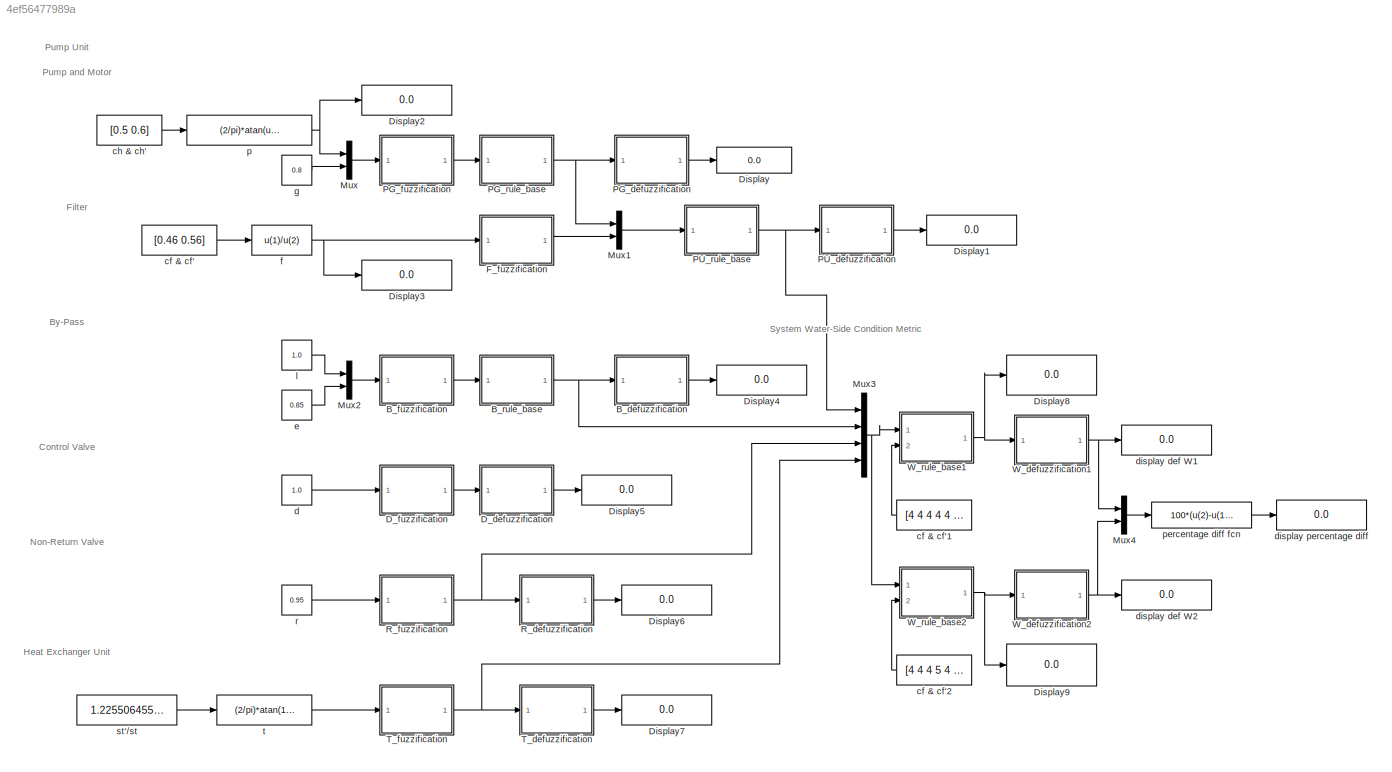
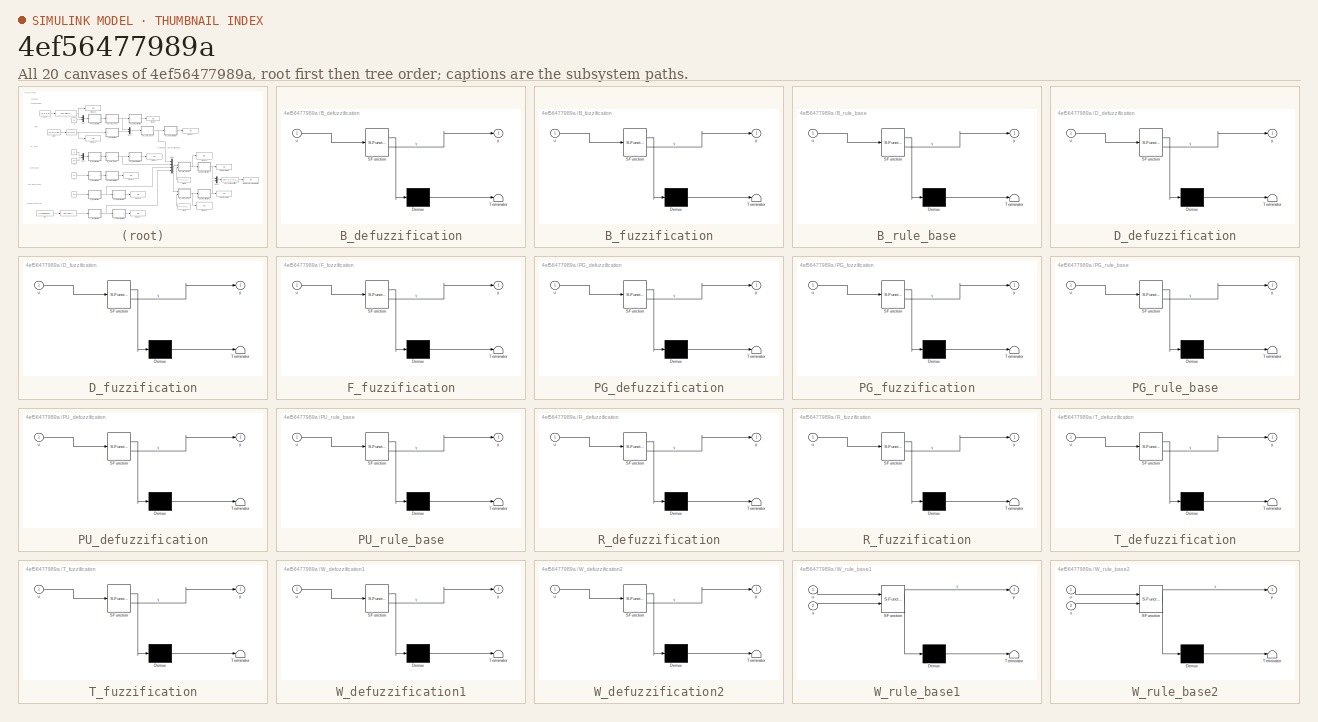
[diagram: thumbnail index - all 20 canvases of the model, root first then tree order]
MODEL slx_4ef56477989a
KIND model
CONFIG AbsTol = auto
CONFIG EnableMultiTasking = off
CONFIG FixedStep = auto
CONFIG MaxStep = auto
CONFIG MinStep = auto
CONFIG RelTol = 1e-3
CONFIG SampleTimeConstraint = Unconstrained
CONFIG Solver = VariableStepAuto
CONFIG SolverName = VariableStepAuto
CONFIG StartTime = 0.0
CONFIG StopTime = 1.0
BLOCK [SubSystem] B_defuzzification
  ErrorFcn = Stateflow.Translate.translate
  PermitHierarchicalResolution = ExplicitOnly
  Ports = [1, 1]
  RequestExecContextInheritance = off
  SFBlockType = MATLAB Function
  TreatAsAtomicUnit = on
BLOCK [Demux] B_defuzzification/ Demux 
  Outputs = 1
  Ports = [1, 1]
BLOCK [S-Function] B_defuzzification/ SFunction 
  EnableBusSupport = on
  FunctionName = sf_sfun
  PortCounts = [1 2]
  Ports = [1, 2]
  SFcnIsStateOwnerBlock = off
  SFunctionDeploymentMode = off
  Tag = Stateflow S-Function 12
BLOCK [Terminator] B_defuzzification/ Terminator 
BLOCK [Inport] B_defuzzification/u
BLOCK [Outport] B_defuzzification/y
BLOCK [SubSystem] B_fuzzification
  ErrorFcn = Stateflow.Translate.translate
  PermitHierarchicalResolution = ExplicitOnly
  Ports = [1, 1]
  RequestExecContextInheritance = off
  SFBlockType = MATLAB Function
  TreatAsAtomicUnit = on
BLOCK [Demux] B_fuzzification/ Demux 
  Outputs = 1
  Ports = [1, 1]
BLOCK [S-Function] B_fuzzification/ SFunction 
  EnableBusSupport = on
  FunctionName = sf_sfun
  PortCounts = [1 2]
  Ports = [1, 2]
  SFcnIsStateOwnerBlock = off
  SFunctionDeploymentMode = off
  Tag = Stateflow S-Function 3
BLOCK [Terminator] B_fuzzification/ Terminator 
BLOCK [Inport] B_fuzzification/u
BLOCK [Outport] B_fuzzification/y
BLOCK [SubSystem] B_rule_base
  ErrorFcn = Stateflow.Translate.translate
  PermitHierarchicalResolution = ExplicitOnly
  Ports = [1, 1]
  RequestExecContextInheritance = off
  SFBlockType = MATLAB Function
  TreatAsAtomicUnit = on
BLOCK [Demux] B_rule_base/ Demux 
  Outputs = 1
  Ports = [1, 1]
BLOCK [S-Function] B_rule_base/ SFunction 
  EnableBusSupport = on
  FunctionName = sf_sfun
  PortCounts = [1 2]
  Ports = [1, 2]
  SFcnIsStateOwnerBlock = off
  SFunctionDeploymentMode = off
  Tag = Stateflow S-Function 11
BLOCK [Terminator] B_rule_base/ Terminator 
BLOCK [Inport] B_rule_base/u
BLOCK [Outport] B_rule_base/y
BLOCK [SubSystem] D_defuzzification
  ErrorFcn = Stateflow.Translate.translate
  PermitHierarchicalResolution = ExplicitOnly
  Ports = [1, 1]
  RequestExecContextInheritance = off
  SFBlockType = MATLAB Function
  TreatAsAtomicUnit = on
BLOCK [Demux] D_defuzzification/ Demux 
  Outputs = 1
  Ports = [1, 1]
BLOCK [S-Function] D_defuzzification/ SFunction 
  EnableBusSupport = on
  FunctionName = sf_sfun
  PortCounts = [1 2]
  Ports = [1, 2]
  SFcnIsStateOwnerBlock = off
  SFunctionDeploymentMode = off
  Tag = Stateflow S-Function 4
BLOCK [Terminator] D_defuzzification/ Terminator 
BLOCK [Inport] D_defuzzification/u
BLOCK [Outport] D_defuzzification/y
BLOCK [SubSystem] D_fuzzification
  ErrorFcn = Stateflow.Translate.translate
  PermitHierarchicalResolution = ExplicitOnly
  Ports = [1, 1]
  RequestExecContextInheritance = off
  SFBlockType = MATLAB Function
  TreatAsAtomicUnit = on
BLOCK [Demux] D_fuzzification/ Demux 
  Outputs = 1
  Ports = [1, 1]
BLOCK [S-Function] D_fuzzification/ SFunction 
  EnableBusSupport = on
  FunctionName = sf_sfun
  PortCounts = [1 2]
  Ports = [1, 2]
  SFcnIsStateOwnerBlock = off
  SFunctionDeploymentMode = off
  Tag = Stateflow S-Function 13
BLOCK [Terminator] D_fuzzification/ Terminator 
BLOCK [Inport] D_fuzzification/u
BLOCK [Outport] D_fuzzification/y
BLOCK [Display] Display
  Decimation = 1
  Ports = [1]
BLOCK [Display] Display1
  Decimation = 1
  Ports = [1]
BLOCK [Display] Display2
  Decimation = 1
  Ports = [1]
BLOCK [Display] Display3
  Decimation = 1
  Ports = [1]
BLOCK [Display] Display4
  Decimation = 1
  Ports = [1]
BLOCK [Display] Display5
  Decimation = 1
  Ports = [1]
BLOCK [Display] Display6
  Decimation = 1
  Ports = [1]
BLOCK [Display] Display7
  Decimation = 1
  Ports = [1]
BLOCK [Display] Display8
  Decimation = 1
  Ports = [1]
BLOCK [Display] Display9
  Decimation = 1
  Ports = [1]
BLOCK [SubSystem] F_fuzzification
  ErrorFcn = Stateflow.Translate.translate
  PermitHierarchicalResolution = ExplicitOnly
  Ports = [1, 1]
  RequestExecContextInheritance = off
  SFBlockType = MATLAB Function
  TreatAsAtomicUnit = on
BLOCK [Demux] F_fuzzification/ Demux 
  Outputs = 1
  Ports = [1, 1]
BLOCK [S-Function] F_fuzzification/ SFunction 
  EnableBusSupport = on
  FunctionName = sf_sfun
  PortCounts = [1 2]
  Ports = [1, 2]
  SFcnIsStateOwnerBlock = off
  SFunctionDeploymentMode = off
  Tag = Stateflow S-Function 10
BLOCK [Terminator] F_fuzzification/ Terminator 
BLOCK [Inport] F_fuzzification/u
BLOCK [Outport] F_fuzzification/y
BLOCK [Mux] Mux
  DisplayOption = bar
  Inputs = 2
  Ports = [2, 1]
BLOCK [Mux] Mux1
  DisplayOption = bar
  Inputs = 2
  Ports = [2, 1]
BLOCK [Mux] Mux2
  DisplayOption = bar
  Inputs = 2
  Ports = [2, 1]
BLOCK [Mux] Mux3
  DisplayOption = bar
  Ports = [4, 1]
BLOCK [Mux] Mux4
  DisplayOption = bar
  Inputs = 2
  Ports = [2, 1]
BLOCK [SubSystem] PG_defuzzification
  ErrorFcn = Stateflow.Translate.translate
  PermitHierarchicalResolution = ExplicitOnly
  Ports = [1, 1]
  RequestExecContextInheritance = off
  SFBlockType = MATLAB Function
  TreatAsAtomicUnit = on
BLOCK [Demux] PG_defuzzification/ Demux 
  Outputs = 1
  Ports = [1, 1]
BLOCK [S-Function] PG_defuzzification/ SFunction 
  EnableBusSupport = on
  FunctionName = sf_sfun
  PortCounts = [1 2]
  Ports = [1, 2]
  SFcnIsStateOwnerBlock = off
  SFunctionDeploymentMode = off
  Tag = Stateflow S-Function 8
BLOCK [Terminator] PG_defuzzification/ Terminator 
BLOCK [Inport] PG_defuzzification/u
BLOCK [Outport] PG_defuzzification/y
BLOCK [SubSystem] PG_fuzzification
  ErrorFcn = Stateflow.Translate.translate
  PermitHierarchicalResolution = ExplicitOnly
  Ports = [1, 1]
  RequestExecContextInheritance = off
  SFBlockType = MATLAB Function
  TreatAsAtomicUnit = on
BLOCK [Demux] PG_fuzzification/ Demux 
  Outputs = 1
  Ports = [1, 1]
BLOCK [S-Function] PG_fuzzification/ SFunction 
  EnableBusSupport = on
  FunctionName = sf_sfun
  PortCounts = [1 2]
  Ports = [1, 2]
  SFcnIsStateOwnerBlock = off
  SFunctionDeploymentMode = off
  Tag = Stateflow S-Function 2
BLOCK [Terminator] PG_fuzzification/ Terminator 
BLOCK [Inport] PG_fuzzification/u
BLOCK [Outport] PG_fuzzification/y
BLOCK [SubSystem] PG_rule_base
  ErrorFcn = Stateflow.Translate.translate
  PermitHierarchicalResolution = ExplicitOnly
  Ports = [1, 1]
  RequestExecContextInheritance = off
  SFBlockType = MATLAB Function
  TreatAsAtomicUnit = on
BLOCK [Demux] PG_rule_base/ Demux 
  Outputs = 1
  Ports = [1, 1]
BLOCK [S-Function] PG_rule_base/ SFunction 
  EnableBusSupport = on
  FunctionName = sf_sfun
  PortCounts = [1 2]
  Ports = [1, 2]
  SFcnIsStateOwnerBlock = off
  SFunctionDeploymentMode = off
  Tag = Stateflow S-Function 7
BLOCK [Terminator] PG_rule_base/ Terminator 
BLOCK [Inport] PG_rule_base/u
BLOCK [Outport] PG_rule_base/y
BLOCK [SubSystem] PU_defuzzification
  ErrorFcn = Stateflow.Translate.translate
  PermitHierarchicalResolution = ExplicitOnly
  Ports = [1, 1]
  RequestExecContextInheritance = off
  SFBlockType = MATLAB Function
  TreatAsAtomicUnit = on
BLOCK [Demux] PU_defuzzification/ Demux 
  Outputs = 1
  Ports = [1, 1]
BLOCK [S-Function] PU_defuzzification/ SFunction 
  EnableBusSupport = on
  FunctionName = sf_sfun
  PortCounts = [1 2]
  Ports = [1, 2]
  SFcnIsStateOwnerBlock = off
  SFunctionDeploymentMode = off
  Tag = Stateflow S-Function 1
BLOCK [Terminator] PU_defuzzification/ Terminator 
BLOCK [Inport] PU_defuzzification/u
BLOCK [Outport] PU_defuzzification/y
BLOCK [SubSystem] PU_rule_base
  ErrorFcn = Stateflow.Translate.translate
  PermitHierarchicalResolution = ExplicitOnly
  Ports = [1, 1]
  RequestExecContextInheritance = off
  SFBlockType = MATLAB Function
  TreatAsAtomicUnit = on
BLOCK [Demux] PU_rule_base/ Demux 
  Outputs = 1
  Ports = [1, 1]
BLOCK [S-Function] PU_rule_base/ SFunction 
  EnableBusSupport = on
  FunctionName = sf_sfun
  PortCounts = [1 2]
  Ports = [1, 2]
  SFcnIsStateOwnerBlock = off
  SFunctionDeploymentMode = off
  Tag = Stateflow S-Function 9
BLOCK [Terminator] PU_rule_base/ Terminator 
BLOCK [Inport] PU_rule_base/u
BLOCK [Outport] PU_rule_base/y
BLOCK [SubSystem] R_defuzzification
  ErrorFcn = Stateflow.Translate.translate
  PermitHierarchicalResolution = ExplicitOnly
  Ports = [1, 1]
  RequestExecContextInheritance = off
  SFBlockType = MATLAB Function
  TreatAsAtomicUnit = on
BLOCK [Demux] R_defuzzification/ Demux 
  Outputs = 1
  Ports = [1, 1]
BLOCK [S-Function] R_defuzzification/ SFunction 
  EnableBusSupport = on
  FunctionName = sf_sfun
  PortCounts = [1 2]
  Ports = [1, 2]
  SFcnIsStateOwnerBlock = off
  SFunctionDeploymentMode = off
  Tag = Stateflow S-Function 5
BLOCK [Terminator] R_defuzzification/ Terminator 
BLOCK [Inport] R_defuzzification/u
BLOCK [Outport] R_defuzzification/y
BLOCK [SubSystem] R_fuzzification
  ErrorFcn = Stateflow.Translate.translate
  PermitHierarchicalResolution = ExplicitOnly
  Ports = [1, 1]
  RequestExecContextInheritance = off
  SFBlockType = MATLAB Function
  TreatAsAtomicUnit = on
BLOCK [Demux] R_fuzzification/ Demux 
  Outputs = 1
  Ports = [1, 1]
BLOCK [S-Function] R_fuzzification/ SFunction 
  EnableBusSupport = on
  FunctionName = sf_sfun
  PortCounts = [1 2]
  Ports = [1, 2]
  SFcnIsStateOwnerBlock = off
  SFunctionDeploymentMode = off
  Tag = Stateflow S-Function 14
BLOCK [Terminator] R_fuzzification/ Terminator 
BLOCK [Inport] R_fuzzification/u
BLOCK [Outport] R_fuzzification/y
BLOCK [SubSystem] T_defuzzification
  ErrorFcn = Stateflow.Translate.translate
  PermitHierarchicalResolution = ExplicitOnly
  Ports = [1, 1]
  RequestExecContextInheritance = off
  SFBlockType = MATLAB Function
  TreatAsAtomicUnit = on
BLOCK [Demux] T_defuzzification/ Demux 
  Outputs = 1
  Ports = [1, 1]
BLOCK [S-Function] T_defuzzification/ SFunction 
  EnableBusSupport = on
  FunctionName = sf_sfun
  PortCounts = [1 2]
  Ports = [1, 2]
  SFcnIsStateOwnerBlock = off
  SFunctionDeploymentMode = off
  Tag = Stateflow S-Function 6
BLOCK [Terminator] T_defuzzification/ Terminator 
BLOCK [Inport] T_defuzzification/u
BLOCK [Outport] T_defuzzification/y
BLOCK [SubSystem] T_fuzzification
  ErrorFcn = Stateflow.Translate.translate
  PermitHierarchicalResolution = ExplicitOnly
  Ports = [1, 1]
  RequestExecContextInheritance = off
  SFBlockType = MATLAB Function
  TreatAsAtomicUnit = on
BLOCK [Demux] T_fuzzification/ Demux 
  Outputs = 1
  Ports = [1, 1]
BLOCK [S-Function] T_fuzzification/ SFunction 
  EnableBusSupport = on
  FunctionName = sf_sfun
  PortCounts = [1 2]
  Ports = [1, 2]
  SFcnIsStateOwnerBlock = off
  SFunctionDeploymentMode = off
  Tag = Stateflow S-Function 15
BLOCK [Terminator] T_fuzzification/ Terminator 
BLOCK [Inport] T_fuzzification/u
BLOCK [Outport] T_fuzzification/y
BLOCK [SubSystem] W_defuzzification1
  ErrorFcn = Stateflow.Translate.translate
  PermitHierarchicalResolution = ExplicitOnly
  Ports = [1, 1]
  RequestExecContextInheritance = off
  SFBlockType = MATLAB Function
  TreatAsAtomicUnit = on
BLOCK [Demux] W_defuzzification1/ Demux 
  Outputs = 1
  Ports = [1, 1]
BLOCK [S-Function] W_defuzzification1/ SFunction 
  EnableBusSupport = on
  FunctionName = sf_sfun
  PortCounts = [1 2]
  Ports = [1, 2]
  SFcnIsStateOwnerBlock = off
  SFunctionDeploymentMode = off
  Tag = Stateflow S-Function 18
BLOCK [Terminator] W_defuzzification1/ Terminator 
BLOCK [Inport] W_defuzzification1/u
BLOCK [Outport] W_defuzzification1/y
BLOCK [SubSystem] W_defuzzification2
  ErrorFcn = Stateflow.Translate.translate
  PermitHierarchicalResolution = ExplicitOnly
  Ports = [1, 1]
  RequestExecContextInheritance = off
  SFBlockType = MATLAB Function
  TreatAsAtomicUnit = on
BLOCK [Demux] W_defuzzification2/ Demux 
  Outputs = 1
  Ports = [1, 1]
BLOCK [S-Function] W_defuzzification2/ SFunction 
  EnableBusSupport = on
  FunctionName = sf_sfun
  PortCounts = [1 2]
  Ports = [1, 2]
  SFcnIsStateOwnerBlock = off
  SFunctionDeploymentMode = off
  Tag = Stateflow S-Function 19
BLOCK [Terminator] W_defuzzification2/ Terminator 
BLOCK [Inport] W_defuzzification2/u
BLOCK [Outport] W_defuzzification2/y
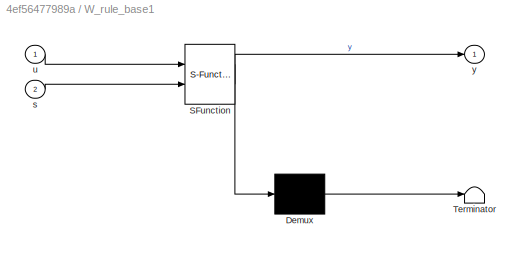
BLOCK [SubSystem] W_rule_base1
  ErrorFcn = Stateflow.Translate.translate
  PermitHierarchicalResolution = ExplicitOnly
  Ports = [2, 1]
  RequestExecContextInheritance = off
  SFBlockType = MATLAB Function
  TreatAsAtomicUnit = on
BLOCK [Demux] W_rule_base1/ Demux 
  Outputs = 1
  Ports = [1, 1]
BLOCK [S-Function] W_rule_base1/ SFunction 
  EnableBusSupport = on
  FunctionName = sf_sfun
  PortCounts = [2 2]
  Ports = [2, 2]
  SFcnIsStateOwnerBlock = off
  SFunctionDeploymentMode = off
  Tag = Stateflow S-Function 16
BLOCK [Terminator] W_rule_base1/ Terminator 
BLOCK [Inport] W_rule_base1/s
  Port = 2
BLOCK [Inport] W_rule_base1/u
BLOCK [Outport] W_rule_base1/y
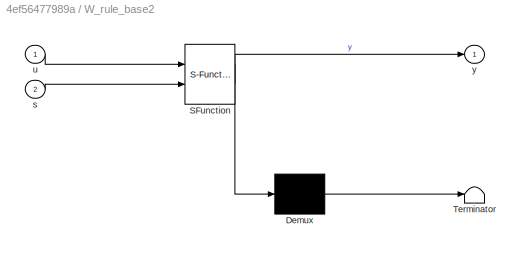
BLOCK [SubSystem] W_rule_base2
  ErrorFcn = Stateflow.Translate.translate
  PermitHierarchicalResolution = ExplicitOnly
  Ports = [2, 1]
  RequestExecContextInheritance = off
  SFBlockType = MATLAB Function
  TreatAsAtomicUnit = on
BLOCK [Demux] W_rule_base2/ Demux 
  Outputs = 1
  Ports = [1, 1]
BLOCK [S-Function] W_rule_base2/ SFunction 
  EnableBusSupport = on
  FunctionName = sf_sfun
  PortCounts = [2 2]
  Ports = [2, 2]
  SFcnIsStateOwnerBlock = off
  SFunctionDeploymentMode = off
  Tag = Stateflow S-Function 17
BLOCK [Terminator] W_rule_base2/ Terminator 
BLOCK [Inport] W_rule_base2/s
  Port = 2
BLOCK [Inport] W_rule_base2/u
BLOCK [Outport] W_rule_base2/y
BLOCK [Constant] cf & cf'
  Value = [0.46 0.56]
BLOCK [Constant] cf & cf'1
  Value = [4 4 4 4 4 4 4 5]
BLOCK [Constant] cf & cf'2
  Value = [4 4 4 5 4 4 4 5]
BLOCK [Constant] ch & ch'
  Value = [0.5 0.6]
BLOCK [Constant] d
  Value = 1.0
BLOCK [Display] display def W1
  Decimation = 1
  Ports = [1]
BLOCK [Display] display def W2
  Decimation = 1
  Ports = [1]
BLOCK [Display] display percentage diff
  Decimation = 1
  Ports = [1]
BLOCK [Constant] e
  Value = 0.85
BLOCK [Fcn] f
  Expr = u(1)/u(2)
BLOCK [Constant] g
  Value = 0.8
BLOCK [Constant] l
  Value = 1.0
BLOCK [Fcn] p
  Expr = (2/pi)*atan(u(1)/(u(2)-u(1)))
BLOCK [Fcn] percentage diff fcn
  Expr = 100*(u(2)-u(1))/u(1)
BLOCK [Constant] r
  Value = 0.95
BLOCK [Constant] st'//st
  Value = 1.225506455158971
BLOCK [Fcn] t
  Expr = (2/pi)*atan(1/(u-1))
ANNOTATION (root): By-Pass
ANNOTATION (root): Control Valve
ANNOTATION (root): Filter
ANNOTATION (root): Heat Exchanger Unit
ANNOTATION (root): Non-Return Valve
ANNOTATION (root): Pump Unit
ANNOTATION (root): Pump and Motor
ANNOTATION (root): System Water-Side Condition Metric
LINE B_defuzzification:1 -> Display4:1
LINE B_fuzzification:1 -> B_rule_base:1
NET B_rule_base:1 -> B_defuzzification:1, Mux3:2
LINE D_defuzzification:1 -> Display5:1
LINE D_fuzzification:1 -> D_defuzzification:1
LINE F_fuzzification:1 -> Mux1:2
LINE Mux1:1 -> PU_rule_base:1
LINE Mux2:1 -> B_fuzzification:1
NET Mux3:1 -> W_rule_base1:1, W_rule_base2:1
LINE Mux4:1 -> percentage diff fcn:1
LINE Mux:1 -> PG_fuzzification:1
LINE PG_defuzzification:1 -> Display:1
LINE PG_fuzzification:1 -> PG_rule_base:1
NET PG_rule_base:1 -> Mux1:1, PG_defuzzification:1
LINE PU_defuzzification:1 -> Display1:1
NET PU_rule_base:1 -> Mux3:1, PU_defuzzification:1
LINE R_defuzzification:1 -> Display6:1
NET R_fuzzification:1 -> Mux3:3, R_defuzzification:1
LINE T_defuzzification:1 -> Display7:1
NET T_fuzzification:1 -> Mux3:4, T_defuzzification:1
NET W_defuzzification1:1 -> Mux4:1, display def W1:1
NET W_defuzzification2:1 -> Mux4:2, display def W2:1
NET W_rule_base1:1 -> Display8:1, W_defuzzification1:1
NET W_rule_base2:1 -> Display9:1, W_defuzzification2:1
LINE cf & cf'1:1 -> W_rule_base1:2
LINE cf & cf'2:1 -> W_rule_base2:2
LINE cf & cf':1 -> f:1
LINE ch & ch':1 -> p:1
LINE d:1 -> D_fuzzification:1
LINE e:1 -> Mux2:2
NET f:1 -> Display3:1, F_fuzzification:1
LINE g:1 -> Mux:2
LINE l:1 -> Mux2:1
NET p:1 -> Display2:1, Mux:1
LINE percentage diff fcn:1 -> display percentage diff:1
LINE r:1 -> R_fuzzification:1
LINE st'//st:1 -> t:1
LINE t:1 -> T_fuzzification:1
note: NET lines group one-source signal fan-out (src -> all destinations, sorted); 1:1 wires keep LINE
CHART T_fuzzification states=1 transitions=1
  STATE_LABEL 'eML_blk_kernel()'
  STATE_LABEL 'SCRIPT:\nfunction y = fcn(u)\n\n% Heat Exchanger Unit\nt = u; % pump condition\n\nT = epud(t);\n\ny = T;\n\nfunction mu = epud(x)\n    mu = zeros(1,5);\n    if x < 0\n        mu(1) = 1+4*x;\n    elseif x < 0.25\n        mu(1) = 1-4*x;\n        mu(2) = 4*x;\n    elseif x < 0.5\n        mu(2) = 2*(1-2*x);\n        mu(3) = 4*x-1;\n    elseif x < 0.75\n        mu(3) = 3-4*x;\n        mu(4) = 2*(2*x-1);\n    elseif x < 1\n   ...<+93ch>'
CHART W_rule_base1 states=1 transitions=1
  STATE_LABEL 'eML_blk_kernel()'
  STATE_LABEL 'SCRIPT:\nfunction y = fcn(u,s)\n\n% System Water-Side Condition Metric\n\n% Pump Unit\nPU = u(1,1:5);\n\n% By-Pass\nB = u(1,6:10);\n\n% Control Valve\n% D: reduced without loss\n\n% Non-Return Valve\nR = u(1,11:15);\n\n% Heat Exchanger Unit\nT = u(1,16:20);\n\nfiringPU = find(PU > 0);\nfiringB = find(B > 0);\nfiringR = find(R > 0);\nfiringT = find(T > 0);\n\noutPU = zeros(1,2);\noutPU(1) = PU(firingPU(1));\noutPU(2) = PU(fi...<+1801ch>'
CHART W_rule_base2 states=1 transitions=1
  STATE_LABEL 'eML_blk_kernel()'
  STATE_LABEL 'SCRIPT:\nfunction y = fcn(u,s)\n\n% System Water-Side Condition Metric\n\n% Pump Unit\nPU = u(1,1:5);\n\n% By-Pass\nB = u(1,6:10);\n\n% Control Valve\n% D: reduced without loss\n\n% Non-Return Valve\nR = u(1,11:15);\n\n% Heat Exchanger Unit\nT = u(1,16:20);\n\nfiringPU = find(PU > 0);\nfiringB = find(B > 0);\nfiringR = find(R > 0);\nfiringT = find(T > 0);\n\noutPU = zeros(1,2);\noutPU(1) = PU(firingPU(1));\noutPU(2) = PU(fi...<+1801ch>'
CHART W_defuzzification1 states=1 transitions=1
  STATE_LABEL 'eML_blk_kernel()'
  STATE_LABEL 'SCRIPT:\nfunction y = fcn(u)\n\nW = zeros(1,5);\nW(4) = u(1);\nW(5) = u(2);\n\ndefW = defuzzify(W);\n\ny = defW;\n\nfunction out = defuzzify(R)\n\n    out = (R(1)*0 + R(2)*0.25 + R(3)*0.5 + R(4)*0.75 + R(5)*1)/(sum(R));\n\nend\n\nend'
CHART W_defuzzification2 states=1 transitions=1
  STATE_LABEL 'eML_blk_kernel()'
  STATE_LABEL 'SCRIPT:\nfunction y = fcn(u)\n\nW = zeros(1,5);\nW(4) = u(1);\nW(5) = u(2);\n\ndefW = defuzzify(W);\n\ny = defW;\n\nfunction out = defuzzify(R)\n\n    out = (R(1)*0 + R(2)*0.25 + R(3)*0.5 + R(4)*0.75 + R(5)*1)/(sum(R));\n\nend\n\nend'
CHART PG_fuzzification states=1 transitions=1
  STATE_LABEL 'eML_blk_kernel()'
  STATE_LABEL 'SCRIPT:\nfunction y = fcn(u)\n\n% Pump and Motor\np = u(1); % pump condition\ng = u(2); % assumed pump-gland condition\n\n% Pump and Filter Condition\nP = epud(p); % filter condition\nG = epud(g); % gland condition\n\ny = [P;G];\n\nfunction mu = epud(x)\n    mu = zeros(1,5);\n    if x < 0\n        mu(1) = 1+4*x;\n    elseif x < 0.25\n        mu(1) = 1-4*x;\n        mu(2) = 4*x;\n    elseif x < 0.5\n        mu(2) = 2*(...<+214ch>'
CHART B_fuzzification states=1 transitions=1
  STATE_LABEL 'eML_blk_kernel()'
  STATE_LABEL 'SCRIPT:\nfunction y = fcn(u)\n\n% By-Pass\nl = u(1); % observed valve gland seal condition\n\nL = epud(l);\n\ne = u(2); % operational ease condition\n\nE = epud_inv(e);\n\ny = [L,E];\n\nfunction mu = epud(x)\n    mu = zeros(1,5);\n    if x < 0\n        mu(1) = 1+4*x;\n    elseif x < 0.25\n        mu(1) = 1-4*x;\n        mu(2) = 4*x;\n    elseif x < 0.5\n        mu(2) = 2*(1-2*x);\n        mu(3) = 4*x-1;\n    elseif x < 0...<+563ch>'
CHART D_defuzzification states=1 transitions=1
  STATE_LABEL 'eML_blk_kernel()'
  STATE_LABEL 'SCRIPT:\nfunction y = fcn(u)\n\nD = u;\n\ndefD = defuzzify(D);\n\ny = defD;\n\nfunction out = defuzzify(R)\n\n    out = (R(1)*0 + R(2)*0.25 + R(3)*0.5 + R(4)*0.75 + R(5)*1)/(sum(R));\n\nend\n\nend'
CHART R_defuzzification states=1 transitions=1
  STATE_LABEL 'eML_blk_kernel()'
  STATE_LABEL 'SCRIPT:\nfunction y = fcn(u)\n\nR = u;\n\ndefR = defuzzify(R);\n\ny = defR;\n\nfunction out = defuzzify(R)\n\n    out = (R(1)*0 + R(2)*0.25 + R(3)*0.5 + R(4)*0.75 + R(5)*1)/(sum(R));\n\nend\n\nend'
CHART T_defuzzification states=1 transitions=1
  STATE_LABEL 'eML_blk_kernel()'
  STATE_LABEL 'SCRIPT:\nfunction y = fcn(u)\n\nT = u;\n\ndefT = defuzzify(T);\n\ny = defT;\n\nfunction out = defuzzify(R)\n\n    out = (R(1)*0 + R(2)*0.25 + R(3)*0.5 + R(4)*0.75 + R(5)*1)/(sum(R));\n\nend\n\nend'
CHART PG_rule_base states=1 transitions=1
  STATE_LABEL 'eML_blk_kernel()'
  STATE_LABEL 'SCRIPT:\nfunction y = fcn(u)\n\n% Pump and Filter Condition\nP = u(1,:); % filter condition\nG = u(2,:); % gland condition\n\nPG = rulePG(P,G);\n\ny = PG;\n\nfunction PG = rulePG(P,G)\n    R11 = min(P(1),G(1));\n    R21 = min(P(1),G(2));\n    R12 = min(P(2),G(1));\n    R22 = min(P(2),G(2));\n    R32 = min(P(2),G(3));\n    R23 = min(P(3),G(2));\n    R33 = min(P(3),G(3));\n    R43 = min(P(3),G(4));\n    R34 = min(P(4),...<+220ch>'
CHART PG_defuzzification states=1 transitions=1
  STATE_LABEL 'eML_blk_kernel()'
  STATE_LABEL 'SCRIPT:\nfunction y = fcn(u)\n\nPG = u;\n\ndefPG = defuzzify(PG);\n\ny = defPG;\n\nfunction out = defuzzify(R)\n\n    out = (R(1)*0 + R(2)*0.25 + R(3)*0.5 + R(4)*0.75 + R(5)*1)/(sum(R));\n\nend\n\nend'
CHART PU_rule_base states=1 transitions=1
  STATE_LABEL 'eML_blk_kernel()'
  STATE_LABEL 'SCRIPT:\nfunction y = fcn(u)\n\n% Pump Unit Condition\nPG = u(1:5);\n\n% Filter Condition\nF = u(6:10);\n\nPU = rulePU(PG,F);\n\ny = PU;\n\nfunction PU = rulePU(P,U)\n    R11 = min(P(1),U(1));\n    R21 = min(P(1),U(2));\n    R12 = min(P(2),U(1));\n    R22 = min(P(2),U(2));\n    R32 = min(P(2),U(3));\n    R23 = min(P(3),U(2));\n    R33 = min(P(3),U(3));\n    R43 = min(P(3),U(4));\n    R34 = min(P(4),U(3));\n    R44 = min...<+200ch>'
CHART F_fuzzification states=1 transitions=1
  STATE_LABEL 'eML_blk_kernel()'
  STATE_LABEL 'SCRIPT:\nfunction y = fcn(u)\n\n% Filter Condition\nf = u;\nF = epud(f); % pump condition\n\ny = F;\n\nfunction mu = epud(x)\n    mu = zeros(1,5);\n    if x < 0\n        mu(1) = 1+4*x;\n    elseif x < 0.25\n        mu(1) = 1-4*x;\n        mu(2) = 4*x;\n    elseif x < 0.5\n        mu(2) = 2*(1-2*x);\n        mu(3) = 4*x-1;\n    elseif x < 0.75\n        mu(3) = 3-4*x;\n        mu(4) = 2*(2*x-1);\n    elseif x < 1\n       ...<+89ch>'
CHART B_rule_base states=1 transitions=1
  STATE_LABEL 'eML_blk_kernel()'
  STATE_LABEL 'SCRIPT:\nfunction y = fcn(u)\n\nL = u(1:5);\n\nE = u(6:10);\n\nB = ruleB(E,L);\n\ny = B;\n\nfunction B = ruleB(E,L)\n    R11 = min(E(5),L(1));\n    R21 = min(E(5),L(2));\n    R31 = min(E(5),L(3));\n    R41 = min(E(5),L(4));\n    R51 = min(E(5),L(5));\n    R12 = min(E(4),L(1));\n    R22 = min(E(4),L(2));\n    R32 = min(E(4),L(3));\n    R42 = min(E(4),L(4));\n    R52 = min(E(4),L(5));\n    R13 = min(E(3),L(1));\n    R23 =...<+511ch>'
CHART PU_defuzzification states=1 transitions=1
  STATE_LABEL 'eML_blk_kernel()'
  STATE_LABEL 'SCRIPT:\nfunction y = fcn(u)\n\nPU = u;\n\ndefPU = defuzzify(PU);\n\ny = defPU;\n\nfunction out = defuzzify(R)\n\n    out = (R(1)*0 + R(2)*0.25 + R(3)*0.5 + R(4)*0.75 + R(5)*1)/(sum(R));\n\nend\n\nend'
CHART B_defuzzification states=1 transitions=1
  STATE_LABEL 'eML_blk_kernel()'
  STATE_LABEL 'SCRIPT:\nfunction y = fcn(u)\n\nB = u;\n\ndefB = defuzzify(B);\n\ny = defB;\n\nfunction out = defuzzify(R)\n\n    out = (R(1)*0 + R(2)*0.25 + R(3)*0.5 + R(4)*0.75 + R(5)*1)/(sum(R));\n\nend\n\nend'
CHART D_fuzzification states=1 transitions=1
  STATE_LABEL 'eML_blk_kernel()'
  STATE_LABEL 'SCRIPT:\nfunction y = fcn(u)\n\n% Control Valve\nd = u; % the unit condition observation\n\nD = epud(d);\n\ny = D;\n\nfunction mu = epud(x)\n    mu = zeros(1,5);\n    if x < 0\n        mu(1) = 1+4*x;\n    elseif x < 0.25\n        mu(1) = 1-4*x;\n        mu(2) = 4*x;\n    elseif x < 0.5\n        mu(2) = 2*(1-2*x);\n        mu(3) = 4*x-1;\n    elseif x < 0.75\n        mu(3) = 3-4*x;\n        mu(4) = 2*(2*x-1);\n    elseif...<+103ch>'
CHART R_fuzzification states=1 transitions=1
  STATE_LABEL 'eML_blk_kernel()'
  STATE_LABEL 'SCRIPT:\nfunction y = fcn(u)\n\n% Non-Return Valve\nr = u; % the observed condition\n\nR = epud(r);\n\ny = R;\n\nfunction mu = epud(x)\n    mu = zeros(1,5);\n    if x < 0\n        mu(1) = 1+4*x;\n    elseif x < 0.25\n        mu(1) = 1-4*x;\n        mu(2) = 4*x;\n    elseif x < 0.5\n        mu(2) = 2*(1-2*x);\n        mu(3) = 4*x-1;\n    elseif x < 0.75\n        mu(3) = 3-4*x;\n        mu(4) = 2*(2*x-1);\n    elseif x < ...<+98ch>'
CHART  states=0 transitions=0
CHART  states=0 transitions=0
CHART  states=0 transitions=0
CHART  states=0 transitions=0
CHART  states=0 transitions=0
CHART  states=0 transitions=0
CHART  states=0 transitions=0
CHART  states=0 transitions=0
CHART  states=0 transitions=0
CHART  states=0 transitions=0
CHART  states=0 transitions=0
CHART  states=0 transitions=0
CHART  states=0 transitions=0
CHART  states=0 transitions=0
CHART  states=0 transitions=0
CHART  states=0 transitions=0
CHART  states=0 transitions=0
CHART  states=0 transitions=0
CHART  states=0 transitions=0
